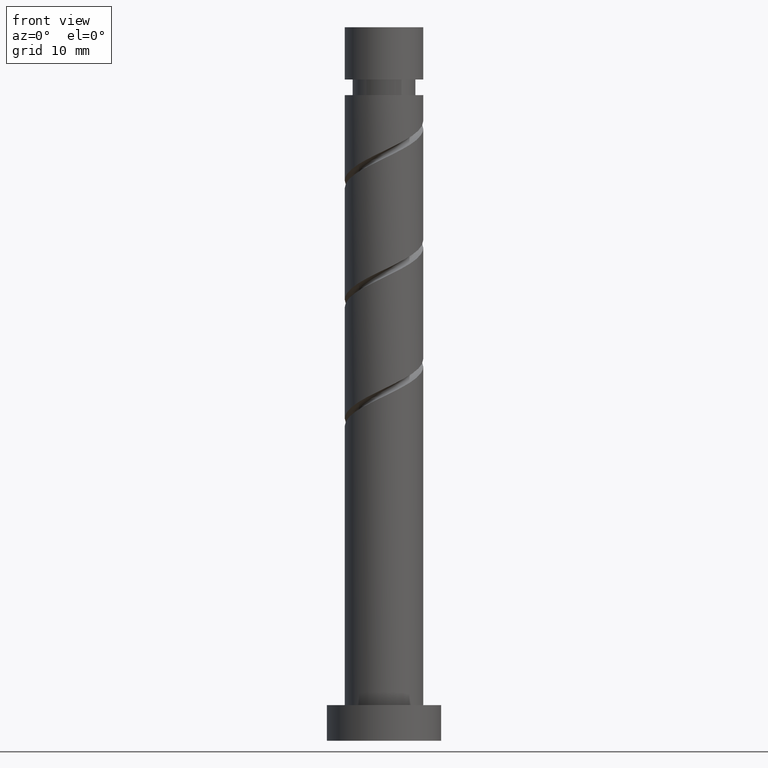
[diagram: clean part render]
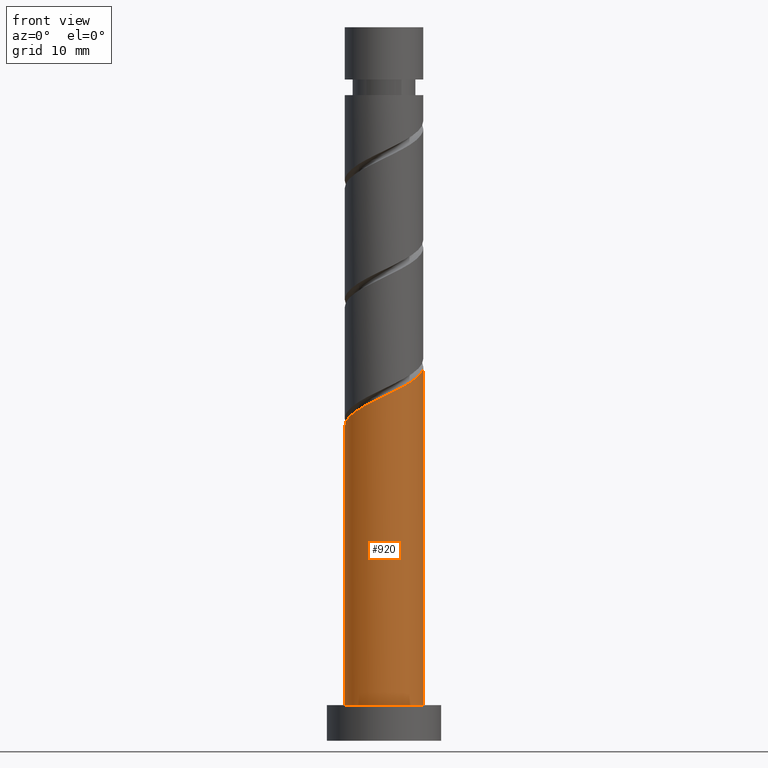
[diagram: same view with one face highlighted and labeled with its STEP entity id]
A machine part, front view. The second image highlights one B-rep face of the part: STEP entity #920.
In plain terms, the highlighted cylindrical surface (partial cylindrical patch) has radius 5.5 mm, axis along (-0, -0, -1).
Its self-contained STEP definition (entity closure, byte-faithful):
#2 = CARTESIAN_POINT ( 'NONE',  ( 0.1440837547986535683, -5.582987443690659468, 48.35024730262997394 ) ) ;
#64 = EDGE_LOOP ( 'NONE', ( #236, #858, #1084, #1423 ) ) ;
#93 = CARTESIAN_POINT ( 'NONE',  ( 5.215120016806772618, -1.747147163321230545, 51.59098804337070732 ) ) ;
#101 = CYLINDRICAL_SURFACE ( 'NONE', #421, 5.500000000000000000 ) ;
#114 = DIRECTION ( 'NONE',  ( 0.000000000000000000, 0.000000000000000000, 1.000000000000000000 ) ) ;
#124 = CIRCLE ( 'NONE', #1395, 5.500000000000000000 ) ;
#133 = DIRECTION ( 'NONE',  ( -0.000000000000000000, -0.000000000000000000, -1.000000000000000000 ) ) ;
#147 = EDGE_CURVE ( 'NONE', #660, #359, #124, .T. ) ;
#164 = EDGE_CURVE ( 'NONE', #1341, #660, #1155, .T. ) ;
#213 = CARTESIAN_POINT ( 'NONE',  ( -2.626200159324859840, -4.832501704413787458, 46.96135841374108821 ) ) ;
#235 = CARTESIAN_POINT ( 'NONE',  ( -4.762967077846325559, -2.916273913773612225, 45.57246952485219538 ) ) ;
#236 = ORIENTED_EDGE ( 'NONE', *, *, #1030, .F. ) ;
#244 = CARTESIAN_POINT ( 'NONE',  ( 2.044888606835909339, -5.197012556309358544, 49.27617322855590487 ) ) ;
#247 = DIRECTION ( 'NONE',  ( 1.000000000000000000, 0.000000000000000000, 0.000000000000000000 ) ) ;
#299 = CARTESIAN_POINT ( 'NONE',  ( -5.500000000000000000, 0.000000000000000000, 5.000000000000000000 ) ) ;
#336 = CARTESIAN_POINT ( 'NONE',  ( 0.000000000000000000, 0.000000000000000000, 100.0000000000000000 ) ) ;
#359 = VERTEX_POINT ( 'NONE', #635 ) ;
#421 = AXIS2_PLACEMENT_3D ( 'NONE', #336, #471, #1037 ) ;
#433 = CARTESIAN_POINT ( 'NONE',  ( -5.500000000000006217, 3.577882487981035958E-15, 44.11568871060416797 ) ) ;
#450 = CARTESIAN_POINT ( 'NONE',  ( -4.120633835989489846, -3.642852836678778683, 46.03543248781515018 ) ) ;
#470 = CARTESIAN_POINT ( 'NONE',  ( 2.871969160191508497, -4.690606905604963295, 49.73913619151885968 ) ) ;
#471 = DIRECTION ( 'NONE',  ( -0.000000000000000000, -0.000000000000000000, -1.000000000000000000 ) ) ;
#534 = VECTOR ( 'NONE', #1390, 1000.000000000000000 ) ;
#555 = CARTESIAN_POINT ( 'NONE',  ( 5.500000000000007994, -0.8967990450125188362, 52.01910253157188890 ) ) ;
#563 = CARTESIAN_POINT ( 'NONE',  ( 4.907050832644979543, -2.666713529917046355, 51.12802508040774541 ) ) ;
#574 = CARTESIAN_POINT ( 'NONE',  ( -5.500000000000007994, -0.07095920882611302105, 44.14970608453652545 ) ) ;
#588 = CARTESIAN_POINT ( 'NONE',  ( -5.473149438064171868, -1.111370394343062395, 44.64654359892625024 ) ) ;
#595 = VERTEX_POINT ( 'NONE', #985 ) ;
#635 = CARTESIAN_POINT ( 'NONE',  ( 5.500000000000000000, 6.735557395310442023E-16, 5.000000000000000000 ) ) ;
#660 = VERTEX_POINT ( 'NONE', #299 ) ;
#697 = CARTESIAN_POINT ( 'NONE',  ( 1.094486180817282550, -5.390000000000006786, 48.81321026559293585 ) ) ;
#762 =( BOUNDED_CURVE ( )  B_SPLINE_CURVE ( 2, ( #1482, #574, #1029, #588, #1261, #235, #450, #801, #213, #1368, #1036, #2, #697, #244, #470, #1121, #923, #563, #93, #555, #902 ),
 .UNSPECIFIED., .F., .T. ) 
 B_SPLINE_CURVE_WITH_KNOTS ( ( 3, 2, 2, 2, 2, 2, 2, 2, 2, 2, 3 ),
 ( 0.05452480538552904876, 0.05555555555555558023, 0.06944444444444441977, 0.08333333333333337034, 0.09722222222222220989, 0.1111111111111111605, 0.1250000000000000000, 0.1388888888888888395, 0.1527777777777777901, 0.1666666666666666297, 0.1795248053855290349 ),
 .UNSPECIFIED. ) 
 CURVE ( )  GEOMETRIC_REPRESENTATION_ITEM ( )  RATIONAL_B_SPLINE_CURVE ( ( 0.9071930855141273620, 0.9080659294509749735, 0.9090909090909150558, 0.8952797754656496299, 0.9090909090909150558, 0.8952797754656496299, 0.9090909090909150558, 0.8952797754656496299, 0.9090909090909150558, 0.8952797754656496299, 0.9090909090909150558, 0.8952797754656496299, 0.9090909090909150558, 0.8952797754656496299, 0.9090909090909150558, 0.8952797754656496299, 0.9090909090909150558, 0.8952797754656496299, 0.9090909090909150558, 0.8963047551055897122, 0.9071930855141273620 ) ) 
 REPRESENTATION_ITEM ( '' )  );
#796 = FACE_OUTER_BOUND ( 'NONE', #64, .T. ) ;
#801 = CARTESIAN_POINT ( 'NONE',  ( -3.478300594132653689, -4.369431759583947361, 46.49839545077811209 ) ) ;
#858 = ORIENTED_EDGE ( 'NONE', *, *, #1473, .F. ) ;
#902 = CARTESIAN_POINT ( 'NONE',  ( 5.500000000000006217, -3.674985770535844969E-15, 52.44902204393750367 ) ) ;
#920 = ADVANCED_FACE ( 'NONE', ( #796 ), #101, .T. ) ;
#923 = CARTESIAN_POINT ( 'NONE',  ( 4.303050273096044265, -3.425457392408806978, 50.66506211744479060 ) ) ;
#926 = CARTESIAN_POINT ( 'NONE',  ( -5.500000000000000000, 0.000000000000000000, 100.0000000000000000 ) ) ;
#937 = CARTESIAN_POINT ( 'NONE',  ( 5.500000000000000000, 6.735557395310442023E-16, 100.0000000000000000 ) ) ;
#985 = CARTESIAN_POINT ( 'NONE',  ( 5.500000000000006217, -3.674985770535844969E-15, 52.44902204393750367 ) ) ;
#1029 = CARTESIAN_POINT ( 'NONE',  ( -5.498169319516367892, -0.1418947988088256063, 44.18358063596330254 ) ) ;
#1030 = EDGE_CURVE ( 'NONE', #595, #359, #1159, .T. ) ;
#1036 = CARTESIAN_POINT ( 'NONE',  ( -0.8150079848592056697, -5.439279546467145288, 47.88728433966700493 ) ) ;
#1037 = DIRECTION ( 'NONE',  ( -1.000000000000000000, 0.000000000000000000, 0.000000000000000000 ) ) ;
#1084 = ORIENTED_EDGE ( 'NONE', *, *, #164, .T. ) ;
#1121 = CARTESIAN_POINT ( 'NONE',  ( 3.699049713547106766, -4.184201254900568934, 50.20209915448182159 ) ) ;
#1155 = LINE ( 'NONE', #926, #534 ) ;
#1159 = LINE ( 'NONE', #937, #1206 ) ;
#1206 = VECTOR ( 'NONE', #133, 1000.000000000000000 ) ;
#1261 = CARTESIAN_POINT ( 'NONE',  ( -5.118058257955248713, -2.013822154058337421, 45.10950656188924057 ) ) ;
#1341 = VERTEX_POINT ( 'NONE', #433 ) ;
#1365 = CARTESIAN_POINT ( 'NONE',  ( 0.000000000000000000, 0.000000000000000000, 5.000000000000000000 ) ) ;
#1368 = CARTESIAN_POINT ( 'NONE',  ( -1.774099724517064436, -5.295571649243630219, 47.42432137670405012 ) ) ;
#1390 = DIRECTION ( 'NONE',  ( -0.000000000000000000, -0.000000000000000000, -1.000000000000000000 ) ) ;
#1395 = AXIS2_PLACEMENT_3D ( 'NONE', #1365, #114, #247 ) ;
#1423 = ORIENTED_EDGE ( 'NONE', *, *, #147, .T. ) ;
#1473 = EDGE_CURVE ( 'NONE', #1341, #595, #762, .T. ) ;
#1482 = CARTESIAN_POINT ( 'NONE',  ( -5.500000000000006217, 3.577882487981035958E-15, 44.11568871060416797 ) ) ;